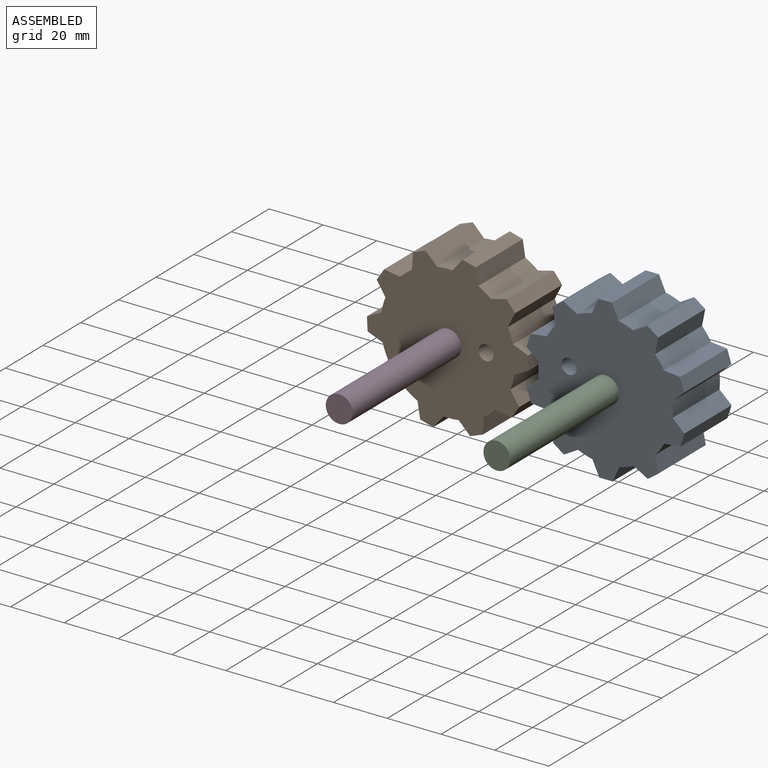
[diagram: assembled view]
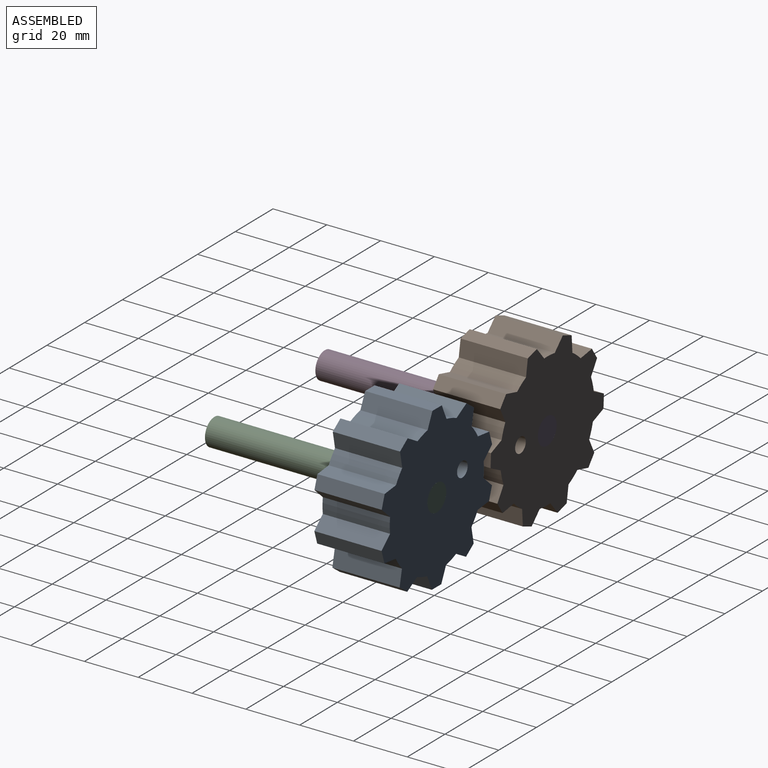
[diagram: assembled view, second angle]
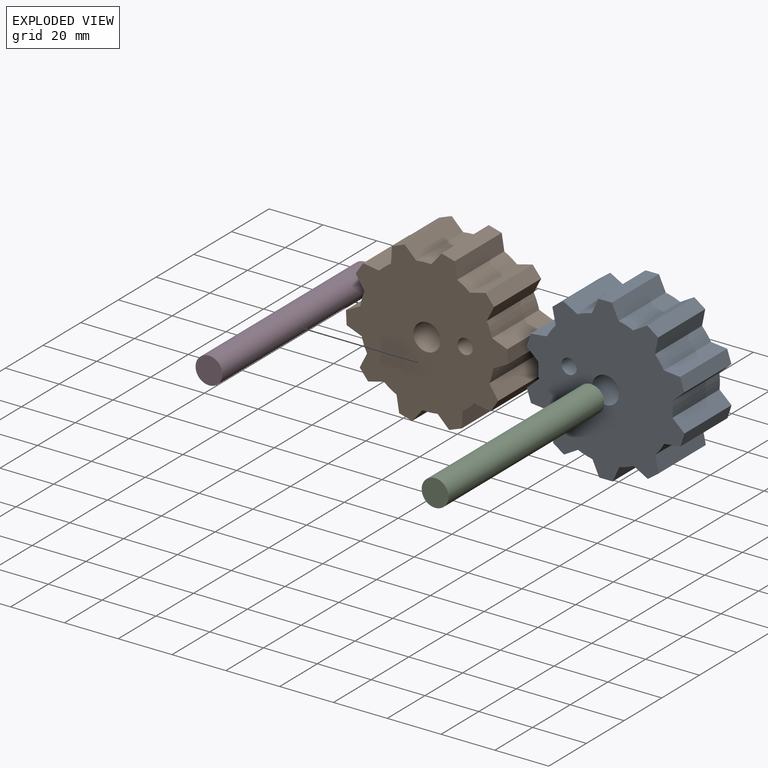
[diagram: exploded view]
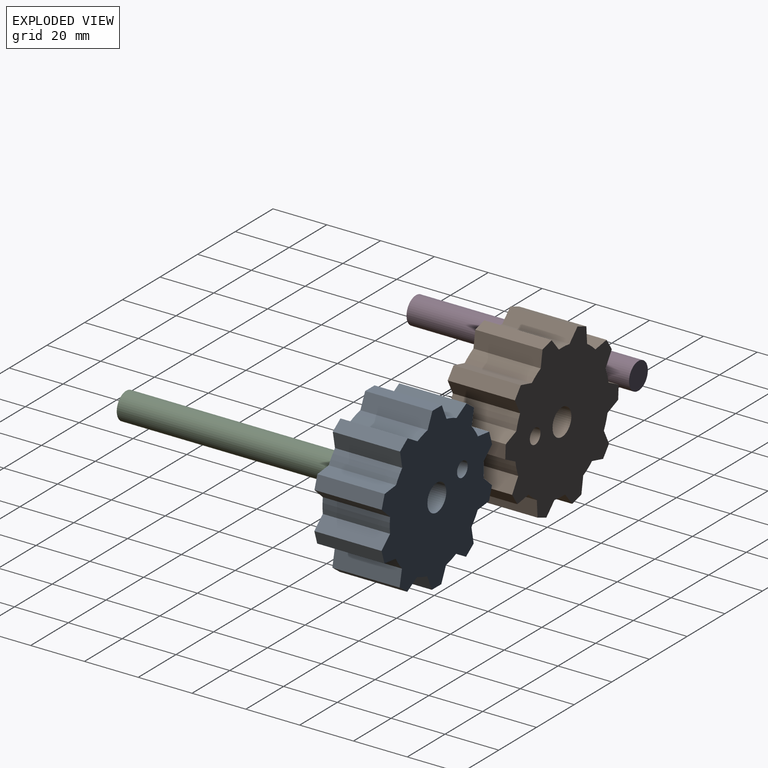
[diagram: exploded view, second angle]
ASSEMBLY  parts=4 mates=2
PART A: 44 faces, bbox 58.6x25x60 mm
  f0: plane 25x5mm, normal (0,0,1), area 125mm2, adj f1,f2,f3,f4
  f1: plane 25x5.51mm, normal (0.91,0,0.41), area 151.2mm2, adj f0,f3,f4,f5
  f2: plane 25x5.51mm, normal (-0.91,0,0.41), area 151.2mm2, adj f0,f3,f4,f14
  f3: plane 60x58.61mm, normal (0,-1,0), area 2239.1mm2, adj f0,f1,f2,f5,f6,f7,f8,f9
  f4: plane 60x58.61mm, normal (0,1,0), area 2239.1mm2, adj f0,f1,f2,f5,f6,f7,f8,f9
  f5: cylinder r=25mm len=25mm, axis (0,1,0), area 141mm2, adj f1,f3,f4,f19
  f6: cylinder r=25mm len=25mm, axis (0,1,0), area 141mm2, adj f3,f4,f39,f43
  f7: cylinder r=25mm len=25mm, axis (0,1,0), area 141mm2, adj f3,f4,f36,f40
  f8: cylinder r=25mm len=25mm, axis (0,1,0), area 141mm2, adj f3,f4,f33,f37
  f9: cylinder r=25mm len=25mm, axis (0,1,0), area 141mm2, adj f3,f4,f30,f34
  f10: cylinder r=25mm len=25mm, axis (0,1,0), area 141mm2, adj f3,f4,f27,f31
  f11: cylinder r=25mm len=25mm, axis (0,1,0), area 141mm2, adj f3,f4,f24,f28
  f12: cylinder r=25mm len=25mm, axis (0,1,0), area 141mm2, adj f3,f4,f21,f25
  f13: cylinder r=25mm len=25mm, axis (0,1,0), area 141mm2, adj f3,f4,f18,f22
  f14: cylinder r=25mm len=25mm, axis (0,1,0), area 141mm2, adj f2,f3,f4,f42
  f15: cylinder r=5mm len=25mm, axis (0,1,0), area 785.4mm2, adj f3,f4
  f16: cylinder r=2.82mm len=25mm, axis (0,1,0), area 443.4mm2, adj f3,f4
  f17: plane 25x4.05mm, normal (0.59,0,0.81), area 125mm2, adj f3,f4,f18,f19
  f18: plane 25x5.92mm, normal (0.98,0,-0.2), area 151.2mm2, adj f3,f4,f13,f17
  f19: plane 25x5.26mm, normal (-0.49,0,0.87), area 151.2mm2, adj f3,f4,f5,f17
  f20: plane 25x4.76mm, normal (0.95,0,0.31), area 125mm2, adj f3,f4,f21,f22
  f21: plane 25x4.46mm, normal (0.67,0,-0.74), area 151.2mm2, adj f3,f4,f12,f20
  f22: plane 25x6.01mm, normal (0.11,0,0.99), area 151.2mm2, adj f3,f4,f13,f20
  f23: plane 25x4.76mm, normal (0.95,0,-0.31), area 125mm2, adj f3,f4,f24,f25
  f24: plane 25x6.01mm, normal (0.11,0,-0.99), area 151.2mm2, adj f3,f4,f11,f23
  f25: plane 25x4.46mm, normal (0.67,0,0.74), area 151.2mm2, adj f3,f4,f12,f23
  f26: plane 25x4.05mm, normal (0.59,0,-0.81), area 125mm2, adj f3,f4,f27,f28
  f27: plane 25x5.26mm, normal (-0.49,0,-0.87), area 151.2mm2, adj f3,f4,f10,f26
  f28: plane 25x5.92mm, normal (0.98,0,0.2), area 151.2mm2, adj f3,f4,f11,f26
  f29: plane 25x5mm, normal (0,0,-1), area 125mm2, adj f3,f4,f30,f31
  f30: plane 25x5.51mm, normal (-0.91,0,-0.41), area 151.2mm2, adj f3,f4,f9,f29
  f31: plane 25x5.51mm, normal (0.91,0,-0.41), area 151.2mm2, adj f3,f4,f10,f29
  f32: plane 25x4.05mm, normal (-0.59,0,-0.81), area 125mm2, adj f3,f4,f33,f34
  f33: plane 25x5.92mm, normal (-0.98,0,0.2), area 151.2mm2, adj f3,f4,f8,f32
  f34: plane 25x5.26mm, normal (0.49,0,-0.87), area 151.2mm2, adj f3,f4,f9,f32
  f35: plane 25x4.76mm, normal (-0.95,0,-0.31), area 125mm2, adj f3,f4,f36,f37
  f36: plane 25x4.46mm, normal (-0.67,0,0.74), area 151.2mm2, adj f3,f4,f7,f35
  f37: plane 25x6.01mm, normal (-0.11,0,-0.99), area 151.2mm2, adj f3,f4,f8,f35
  f38: plane 25x4.76mm, normal (-0.95,0,0.31), area 125mm2, adj f3,f4,f39,f40
  f39: plane 25x6.01mm, normal (-0.11,0,0.99), area 151.2mm2, adj f3,f4,f6,f38
  f40: plane 25x4.46mm, normal (-0.67,0,-0.74), area 151.2mm2, adj f3,f4,f7,f38
  f41: plane 25x4.05mm, normal (-0.59,0,0.81), area 125mm2, adj f3,f4,f42,f43
  f42: plane 25x5.26mm, normal (0.49,0,0.87), area 151.2mm2, adj f3,f4,f14,f41
  f43: plane 25x5.92mm, normal (-0.98,0,-0.2), area 151.2mm2, adj f3,f4,f6,f41
PART B: 44 faces, bbox 58.6x25x60 mm
  f0: plane 25x5mm, normal (0,0,1), area 125mm2, adj f1,f2,f3,f4
  f1: plane 25x5.51mm, normal (-0.91,0,0.41), area 151.2mm2, adj f0,f3,f4,f5
  f2: plane 25x5.51mm, normal (0.91,0,0.41), area 151.2mm2, adj f0,f3,f4,f14
  f3: plane 60x58.61mm, normal (0,-1,0), area 2239.1mm2, adj f0,f1,f2,f5,f6,f7,f8,f9
  f4: plane 60x58.61mm, normal (0,1,0), area 2239.1mm2, adj f0,f1,f2,f5,f6,f7,f8,f9
  f5: cylinder r=25mm len=25mm, axis (0,1,0), area 141mm2, adj f1,f3,f4,f19
  f6: cylinder r=25mm len=25mm, axis (0,1,0), area 141mm2, adj f3,f4,f39,f43
  f7: cylinder r=25mm len=25mm, axis (0,1,0), area 141mm2, adj f3,f4,f36,f40
  f8: cylinder r=25mm len=25mm, axis (0,1,0), area 141mm2, adj f3,f4,f33,f37
  f9: cylinder r=25mm len=25mm, axis (0,1,0), area 141mm2, adj f3,f4,f30,f34
  f10: cylinder r=25mm len=25mm, axis (0,1,0), area 141mm2, adj f3,f4,f27,f31
  f11: cylinder r=25mm len=25mm, axis (0,1,0), area 141mm2, adj f3,f4,f24,f28
  f12: cylinder r=25mm len=25mm, axis (0,1,0), area 141mm2, adj f3,f4,f21,f25
  f13: cylinder r=25mm len=25mm, axis (0,1,0), area 141mm2, adj f3,f4,f18,f22
  f14: cylinder r=25mm len=25mm, axis (0,1,0), area 141mm2, adj f2,f3,f4,f42
  f15: cylinder r=5mm len=25mm, axis (0,1,0), area 785.4mm2, adj f3,f4
  f16: cylinder r=2.82mm len=25mm, axis (0,1,0), area 443.4mm2, adj f3,f4
  f17: plane 25x4.05mm, normal (-0.59,0,0.81), area 125mm2, adj f3,f4,f18,f19
  f18: plane 25x5.92mm, normal (-0.98,0,-0.2), area 151.2mm2, adj f3,f4,f13,f17
  f19: plane 25x5.26mm, normal (0.49,0,0.87), area 151.2mm2, adj f3,f4,f5,f17
  f20: plane 25x4.76mm, normal (-0.95,0,0.31), area 125mm2, adj f3,f4,f21,f22
  f21: plane 25x4.46mm, normal (-0.67,0,-0.74), area 151.2mm2, adj f3,f4,f12,f20
  f22: plane 25x6.01mm, normal (-0.11,0,0.99), area 151.2mm2, adj f3,f4,f13,f20
  f23: plane 25x4.76mm, normal (-0.95,0,-0.31), area 125mm2, adj f3,f4,f24,f25
  f24: plane 25x6.01mm, normal (-0.11,0,-0.99), area 151.2mm2, adj f3,f4,f11,f23
  f25: plane 25x4.46mm, normal (-0.67,0,0.74), area 151.2mm2, adj f3,f4,f12,f23
  f26: plane 25x4.05mm, normal (-0.59,0,-0.81), area 125mm2, adj f3,f4,f27,f28
  f27: plane 25x5.26mm, normal (0.49,0,-0.87), area 151.2mm2, adj f3,f4,f10,f26
  f28: plane 25x5.92mm, normal (-0.98,0,0.2), area 151.2mm2, adj f3,f4,f11,f26
  f29: plane 25x5mm, normal (0,0,-1), area 125mm2, adj f3,f4,f30,f31
  f30: plane 25x5.51mm, normal (0.91,0,-0.41), area 151.2mm2, adj f3,f4,f9,f29
  f31: plane 25x5.51mm, normal (-0.91,0,-0.41), area 151.2mm2, adj f3,f4,f10,f29
  f32: plane 25x4.05mm, normal (0.59,0,-0.81), area 125mm2, adj f3,f4,f33,f34
  f33: plane 25x5.92mm, normal (0.98,0,0.2), area 151.2mm2, adj f3,f4,f8,f32
  f34: plane 25x5.26mm, normal (-0.49,0,-0.87), area 151.2mm2, adj f3,f4,f9,f32
  f35: plane 25x4.76mm, normal (0.95,0,-0.31), area 125mm2, adj f3,f4,f36,f37
  f36: plane 25x4.46mm, normal (0.67,0,0.74), area 151.2mm2, adj f3,f4,f7,f35
  f37: plane 25x6.01mm, normal (0.11,0,-0.99), area 151.2mm2, adj f3,f4,f8,f35
  f38: plane 25x4.76mm, normal (0.95,0,0.31), area 125mm2, adj f3,f4,f39,f40
  f39: plane 25x6.01mm, normal (0.11,0,0.99), area 151.2mm2, adj f3,f4,f6,f38
  f40: plane 25x4.46mm, normal (0.67,0,-0.74), area 151.2mm2, adj f3,f4,f7,f38
  f41: plane 25x4.05mm, normal (0.59,0,0.81), area 125mm2, adj f3,f4,f42,f43
  f42: plane 25x5.26mm, normal (-0.49,0,0.87), area 151.2mm2, adj f3,f4,f14,f41
  f43: plane 25x5.92mm, normal (0.98,0,-0.2), area 151.2mm2, adj f3,f4,f6,f41
PART C: 3 faces, bbox 10x82.7x10 mm
  f0: cylinder r=5mm len=82.7mm, axis (0,1,0), area 2598.1mm2, adj f1,f2
  f1: plane 10x10mm, normal (0,-1,0), area 78.5mm2, adj f0
  f2: plane 10x10mm, normal (0,1,0), area 78.5mm2, adj f0
PART D: 3 faces, bbox 10x82.7x10 mm
  f0: cylinder r=5mm len=82.7mm, axis (0,1,0), area 2598.1mm2, adj f1,f2
  f1: plane 10x10mm, normal (0,-1,0), area 78.5mm2, adj f0
  f2: plane 10x10mm, normal (0,1,0), area 78.5mm2, adj f0
PLACE A rot(axis=(0,-1,0),72.3deg) t=(40.77,0,-55.83)mm
PLACE B rot(axis=(0,1,0),87.3deg) t=(0,0,0)mm
PLACE C at identity fixed
PLACE D at identity fixed
MATE revolute C.f0 <-> A.f15  axis (0,1,0) through (58.61,0,0)mm
MATE revolute D.f0 <-> B.f15  axis (0,1,0) through (0,0,0)mm
